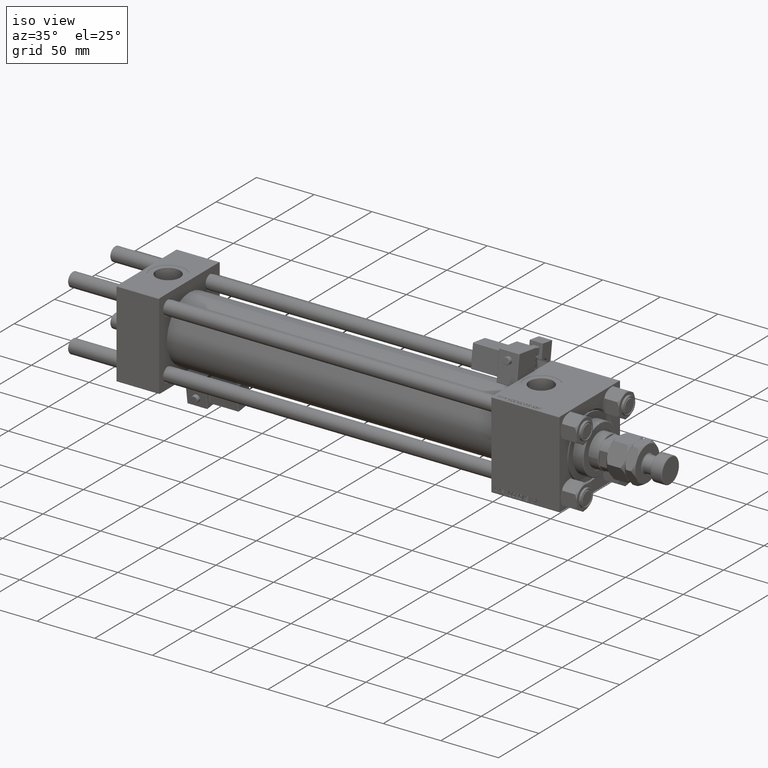
[diagram: clean part render]
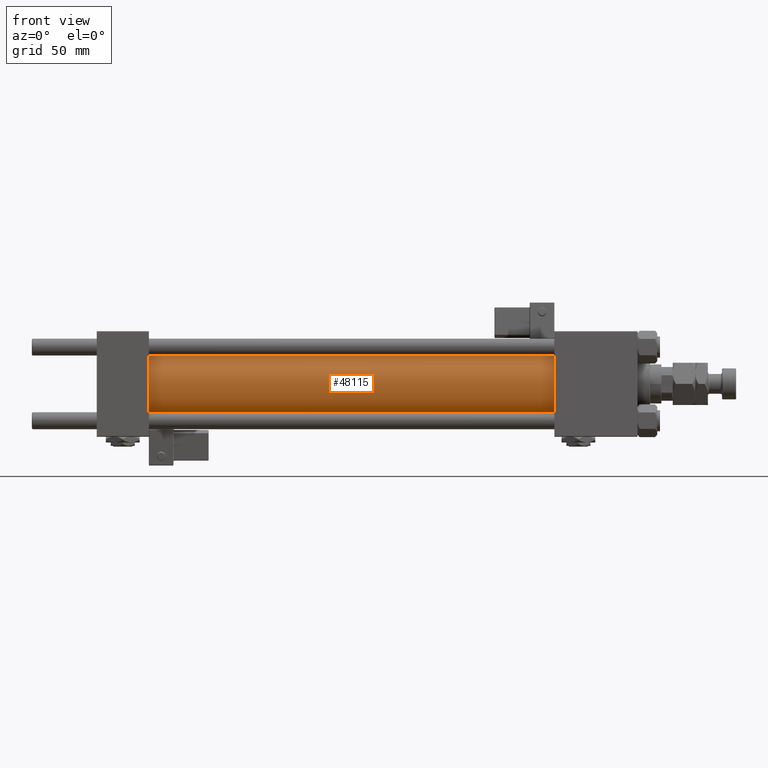
[diagram: tour spotlight — one face highlighted and labeled with its STEP entity id]
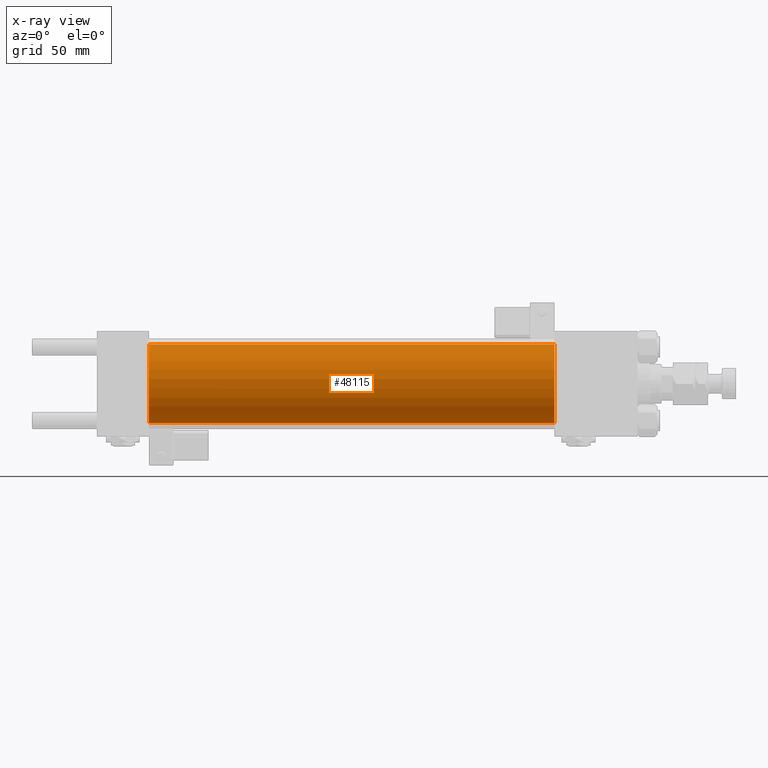
[diagram: x-ray of the same camera — body ghosted, this tour face saturated]
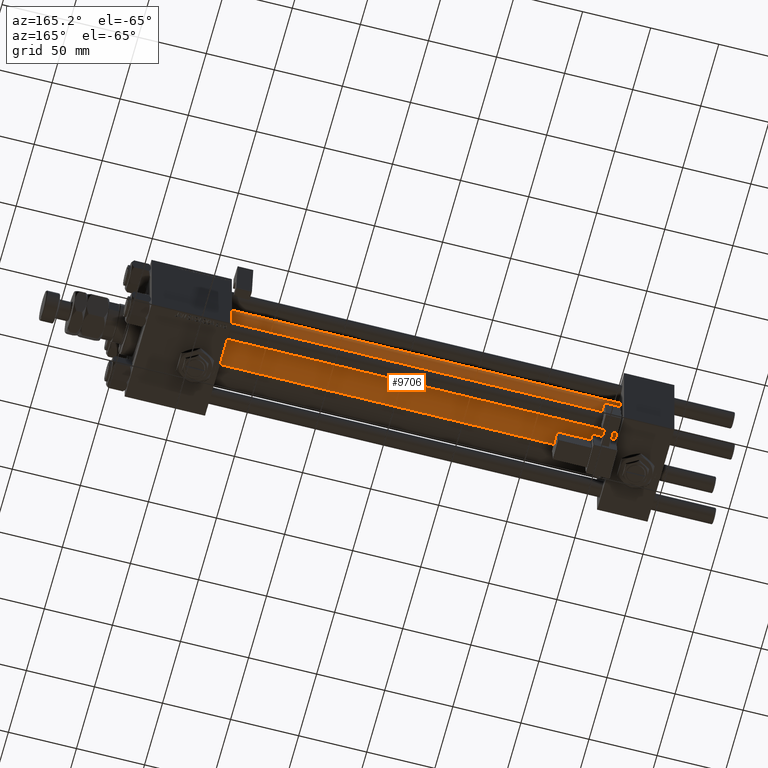
[diagram: tour spotlight — one face highlighted and labeled with its STEP entity id]
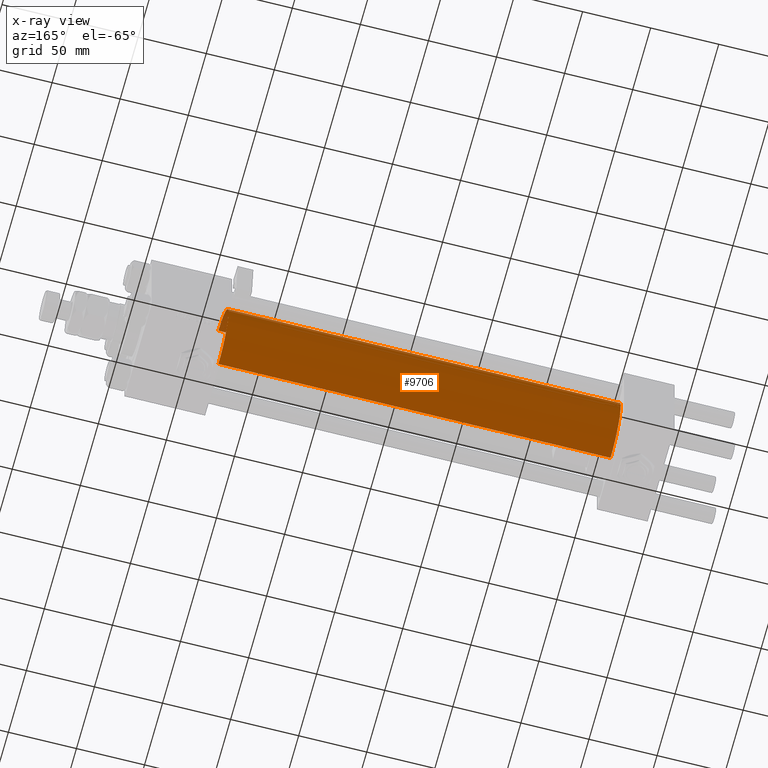
[diagram: x-ray of the same camera — body ghosted, this tour face saturated]
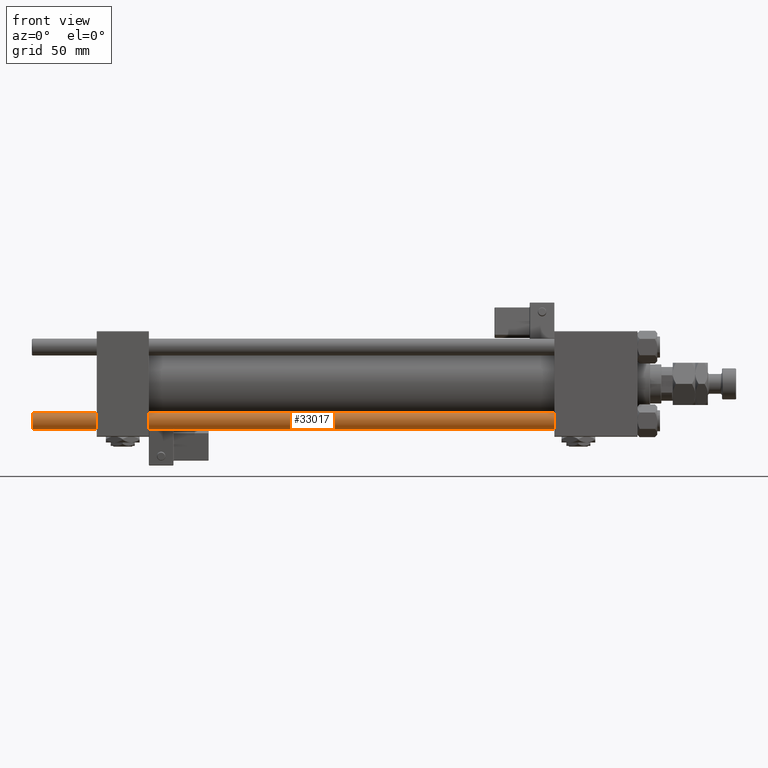
[diagram: tour spotlight — one face highlighted and labeled with its STEP entity id]
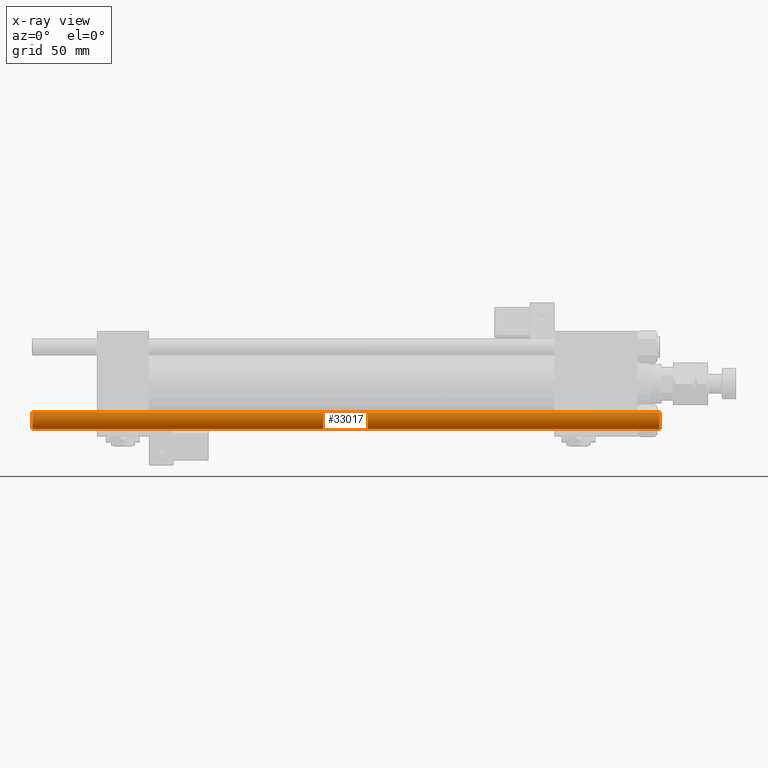
[diagram: x-ray of the same camera — body ghosted, this tour face saturated]
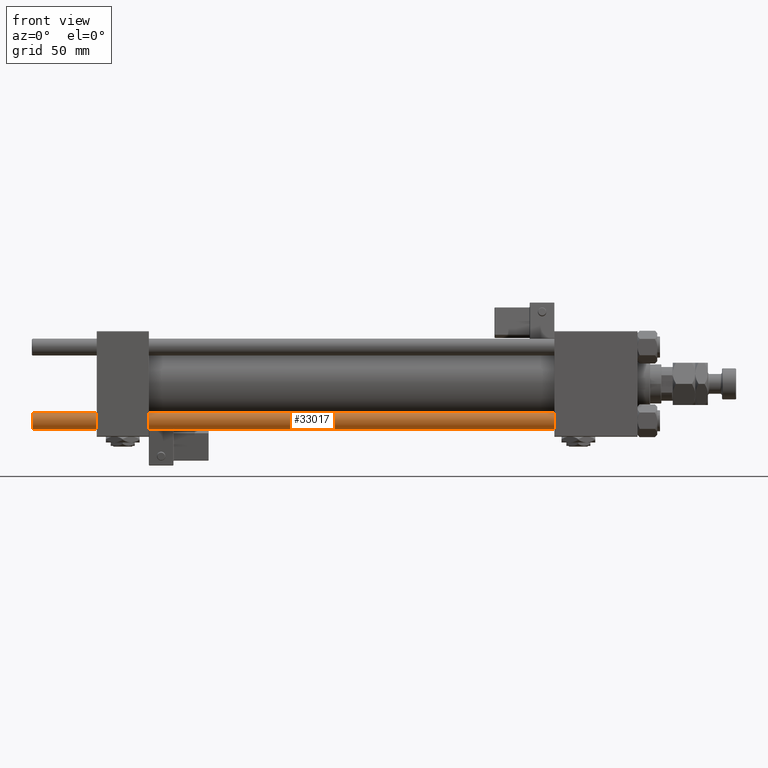
[diagram: tour spotlight — one face highlighted and labeled with its STEP entity id]
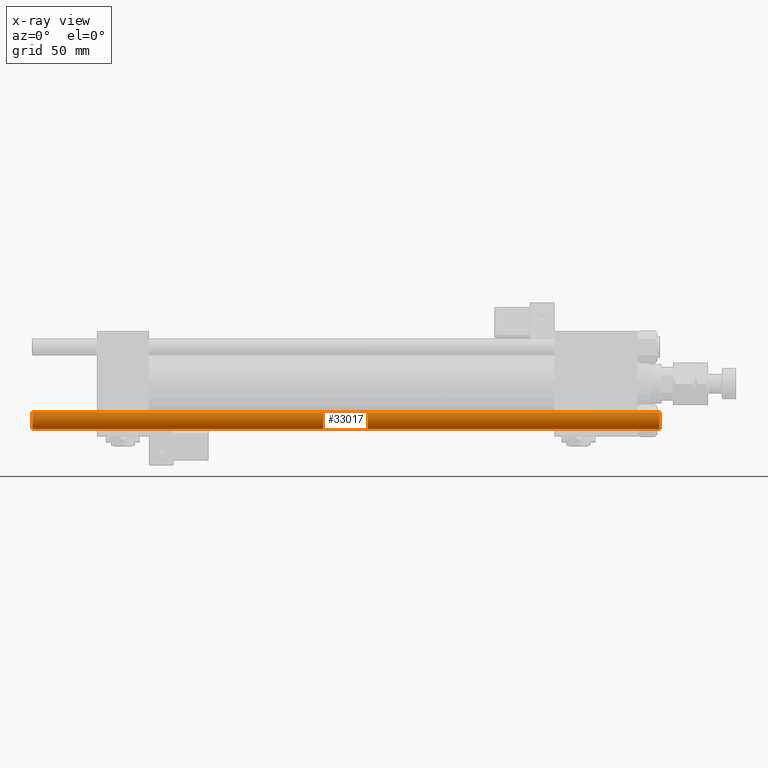
[diagram: x-ray of the same camera — body ghosted, this tour face saturated]
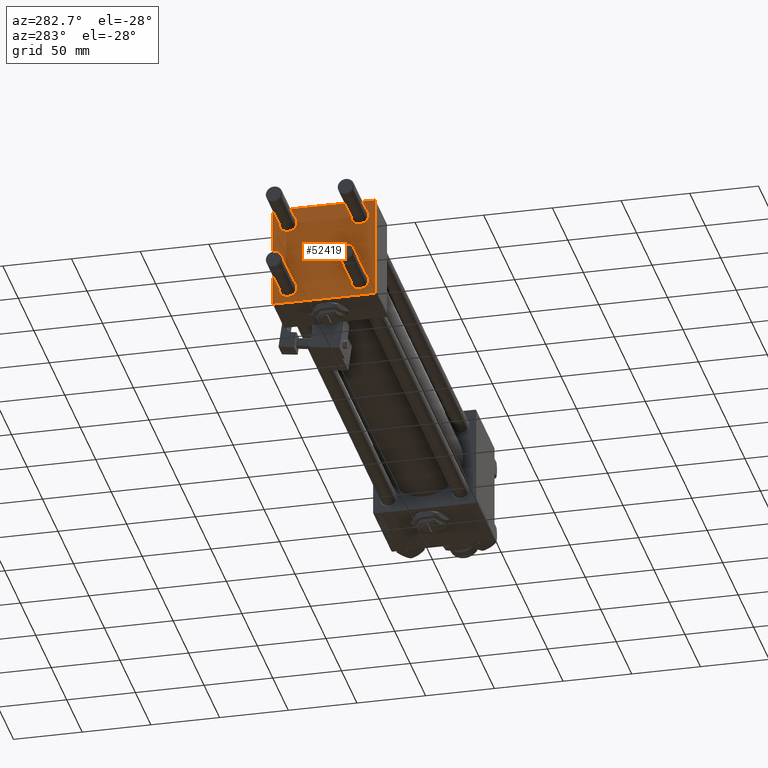
[diagram: tour spotlight — one face highlighted and labeled with its STEP entity id]
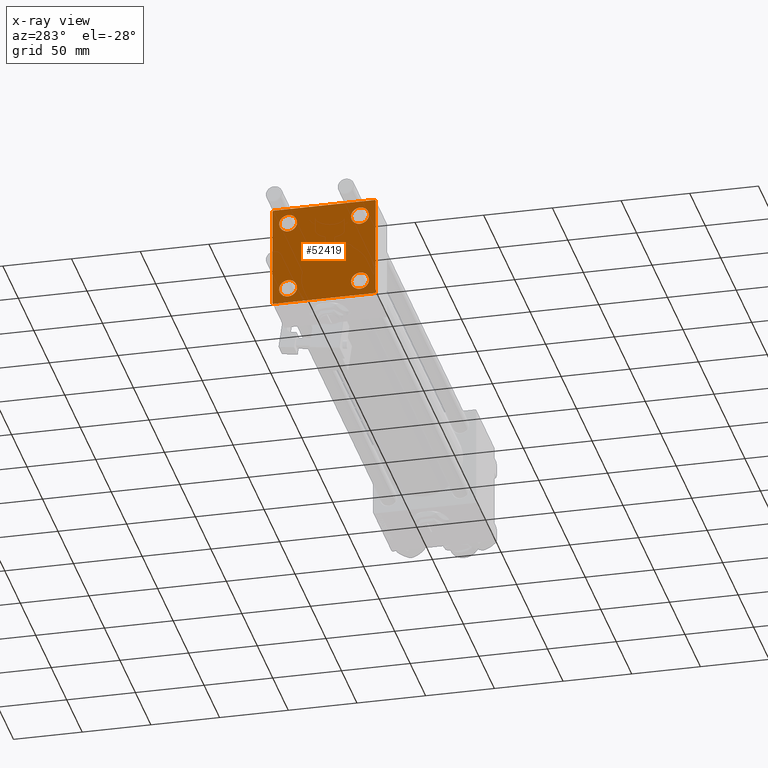
[diagram: x-ray of the same camera — body ghosted, this tour face saturated]
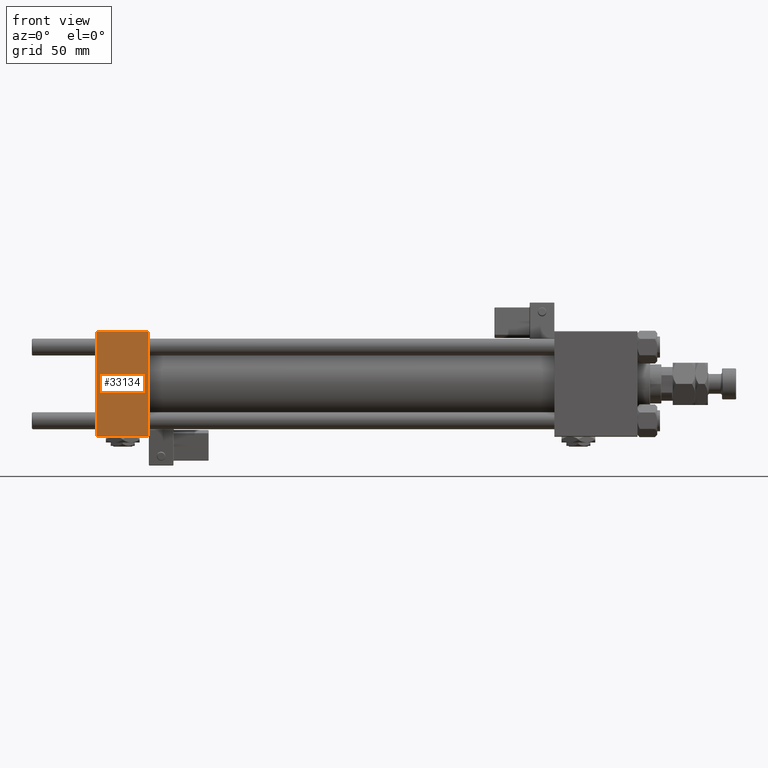
[diagram: tour spotlight — one face highlighted and labeled with its STEP entity id]
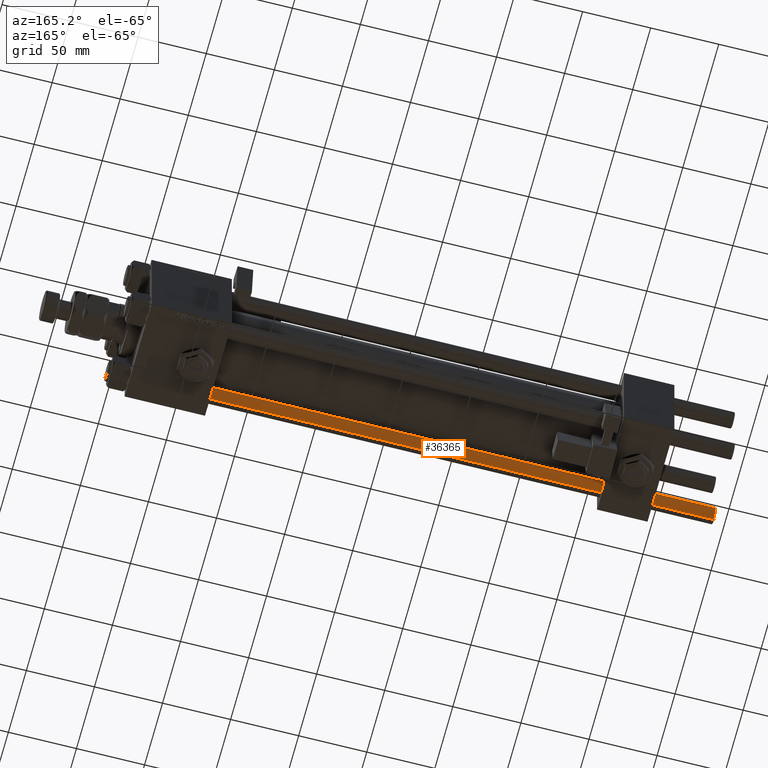
[diagram: tour spotlight — one face highlighted and labeled with its STEP entity id]
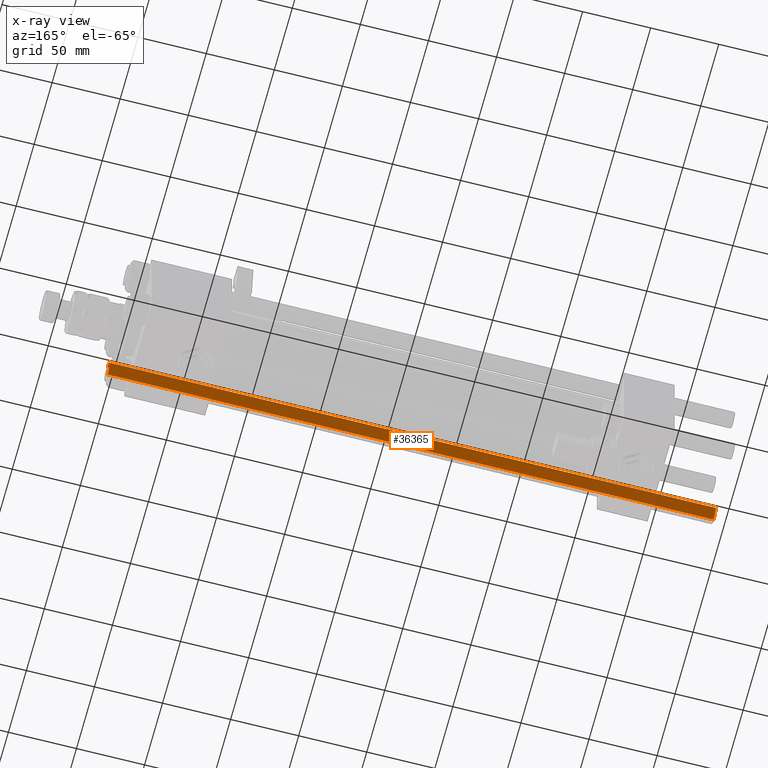
[diagram: x-ray of the same camera — body ghosted, this tour face saturated]
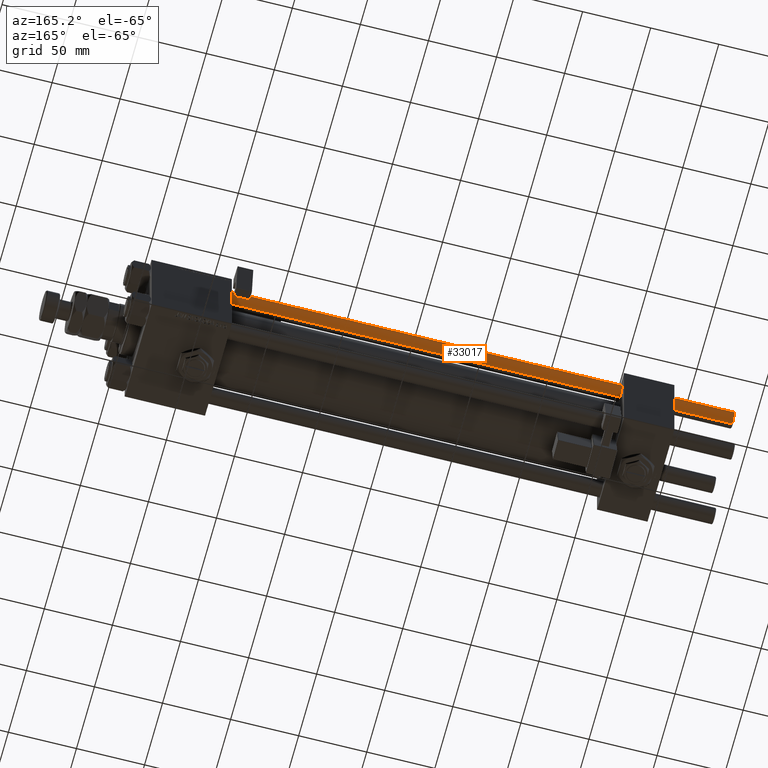
[diagram: tour spotlight — one face highlighted and labeled with its STEP entity id]
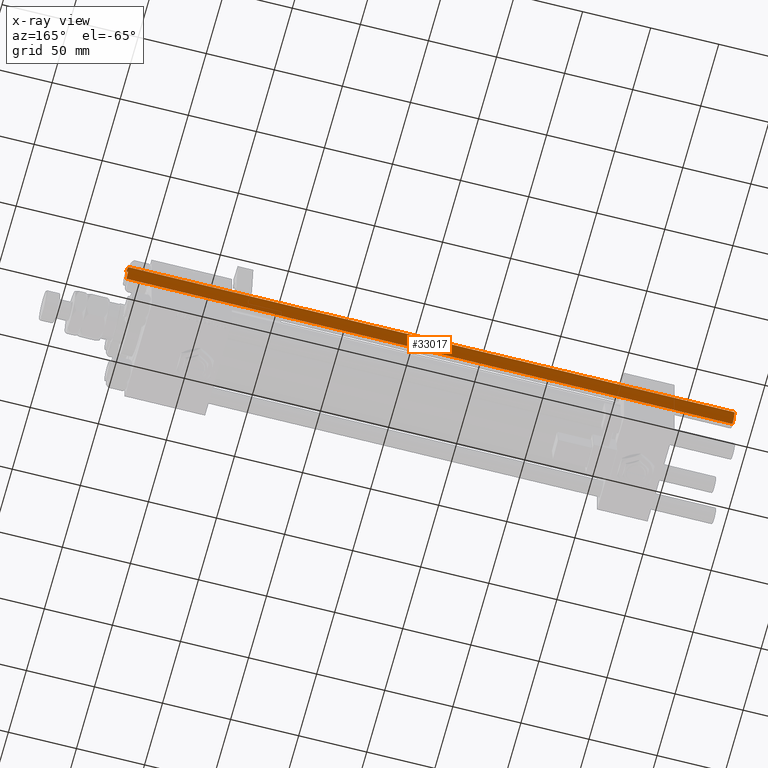
[diagram: x-ray of the same camera — body ghosted, this tour face saturated]
A machine part: a face-by-face anatomy tour. The part has 1439 B-rep faces; the first image is the clean iso view, then the 8 largest visible faces are spotlighted one at a time (largest first), each with its STEP entity span.

Face 1 — front view, entity #48115. An x-ray twin of the same camera follows (body ghosted, this face saturated) — the face is partly hidden behind the body. In plain terms, the highlighted cylindrical surface (partial cylindrical patch) has radius 28 mm, axis along (-1, -0, -0).
Definition (entity closure, byte-faithful):
#454 = EDGE_CURVE ( 'NONE', #48136, #36408, #7080, .T. ) ;
#545 = AXIS2_PLACEMENT_3D ( 'NONE', #39839, #48265, #9749 ) ;
#1561 = ORIENTED_EDGE ( 'NONE', *, *, #39911, .T. ) ;
#1750 = VERTEX_POINT ( 'NONE', #52668 ) ;
#3054 = CARTESIAN_POINT ( 'NONE',  ( 36.99999999999997868, 0.000000000000000000, 0.000000000000000000 ) ) ;
#7080 = LINE ( 'NONE', #41117, #16031 ) ;
#9749 = DIRECTION ( 'NONE',  ( 0.000000000000000000, 0.000000000000000000, -1.000000000000000000 ) ) ;
#11065 = CARTESIAN_POINT ( 'NONE',  ( 324.9999999999999432, 0.000000000000000000, 28.00000000000000000 ) ) ;
#11528 = DIRECTION ( 'NONE',  ( 1.000000000000000000, -0.000000000000000000, 0.000000000000000000 ) ) ;
#13372 = ORIENTED_EDGE ( 'NONE', *, *, #17454, .T. ) ;
#13380 = CARTESIAN_POINT ( 'NONE',  ( 324.9999999999999432, 3.429011037612589276E-15, -28.00000000000000000 ) ) ;
#13888 = CARTESIAN_POINT ( 'NONE',  ( 36.99999999999997868, 3.429011037612589276E-15, -28.00000000000000000 ) ) ;
#15380 = CYLINDRICAL_SURFACE ( 'NONE', #33687, 28.00000000000000000 ) ;
#15854 = LINE ( 'NONE', #11065, #54835 ) ;
#16031 = VECTOR ( 'NONE', #20311, 1000.000000000000000 ) ;
#16710 = CIRCLE ( 'NONE', #545, 28.00000000000000000 ) ;
#17454 = EDGE_CURVE ( 'NONE', #29635, #1750, #15854, .T. ) ;
#18711 = AXIS2_PLACEMENT_3D ( 'NONE', #3054, #11528, #19964 ) ;
#19620 = CIRCLE ( 'NONE', #18711, 28.00000000000000000 ) ;
#19964 = DIRECTION ( 'NONE',  ( 0.000000000000000000, 0.000000000000000000, 1.000000000000000000 ) ) ;
#20311 = DIRECTION ( 'NONE',  ( -1.000000000000000000, -0.000000000000000000, -0.000000000000000000 ) ) ;
#23696 = ORIENTED_EDGE ( 'NONE', *, *, #454, .F. ) ;
#28222 = DIRECTION ( 'NONE',  ( -1.000000000000000000, -0.000000000000000000, -0.000000000000000000 ) ) ;
#28298 = CARTESIAN_POINT ( 'NONE',  ( 324.9999999999999432, 0.000000000000000000, 0.000000000000000000 ) ) ;
#29635 = VERTEX_POINT ( 'NONE', #36951 ) ;
#33345 = DIRECTION ( 'NONE',  ( 0.000000000000000000, 0.000000000000000000, 1.000000000000000000 ) ) ;
#33687 = AXIS2_PLACEMENT_3D ( 'NONE', #28298, #46267, #33345 ) ;
#36408 = VERTEX_POINT ( 'NONE', #13888 ) ;
#36951 = CARTESIAN_POINT ( 'NONE',  ( 324.9999999999999432, 0.000000000000000000, 28.00000000000000000 ) ) ;
#39839 = CARTESIAN_POINT ( 'NONE',  ( 324.9999999999999432, 0.000000000000000000, 0.000000000000000000 ) ) ;
#39911 = EDGE_CURVE ( 'NONE', #1750, #36408, #19620, .T. ) ;
#40109 = EDGE_LOOP ( 'NONE', ( #23696, #52790, #13372, #1561 ) ) ;
#41117 = CARTESIAN_POINT ( 'NONE',  ( 324.9999999999999432, 3.429011037612589276E-15, -28.00000000000000000 ) ) ;
#46267 = DIRECTION ( 'NONE',  ( -1.000000000000000000, -0.000000000000000000, -0.000000000000000000 ) ) ;
#48115 = ADVANCED_FACE ( 'NONE', ( #53891 ), #15380, .T. ) ;
#48136 = VERTEX_POINT ( 'NONE', #13380 ) ;
#48265 = DIRECTION ( 'NONE',  ( 1.000000000000000000, 0.000000000000000000, 0.000000000000000000 ) ) ;
#50451 = EDGE_CURVE ( 'NONE', #29635, #48136, #16710, .T. ) ;
#52668 = CARTESIAN_POINT ( 'NONE',  ( 36.99999999999997868, 0.000000000000000000, 28.00000000000000000 ) ) ;
#52790 = ORIENTED_EDGE ( 'NONE', *, *, #50451, .F. ) ;
#53891 = FACE_OUTER_BOUND ( 'NONE', #40109, .T. ) ;
#54835 = VECTOR ( 'NONE', #28222, 1000.000000000000000 ) ;

Face 2 — auxiliary view, entity #9706. An x-ray twin of the same camera follows (body ghosted, this face saturated) — the face is partly hidden behind the body. In plain terms, the highlighted cylindrical surface (partial cylindrical patch) has radius 28 mm, axis along (-1, -0, -0).
Definition (entity closure, byte-faithful):
#289 = AXIS2_PLACEMENT_3D ( 'NONE', #33502, #25340, #3944 ) ;
#435 = FACE_OUTER_BOUND ( 'NONE', #25379, .T. ) ;
#454 = EDGE_CURVE ( 'NONE', #48136, #36408, #7080, .T. ) ;
#1750 = VERTEX_POINT ( 'NONE', #52668 ) ;
#3944 = DIRECTION ( 'NONE',  ( 0.000000000000000000, 0.000000000000000000, 1.000000000000000000 ) ) ;
#7080 = LINE ( 'NONE', #41117, #16031 ) ;
#8049 = CARTESIAN_POINT ( 'NONE',  ( 324.9999999999999432, 0.000000000000000000, 0.000000000000000000 ) ) ;
#9706 = ADVANCED_FACE ( 'NONE', ( #435 ), #46851, .T. ) ;
#11065 = CARTESIAN_POINT ( 'NONE',  ( 324.9999999999999432, 0.000000000000000000, 28.00000000000000000 ) ) ;
#12533 = CARTESIAN_POINT ( 'NONE',  ( 324.9999999999999432, 0.000000000000000000, 0.000000000000000000 ) ) ;
#13380 = CARTESIAN_POINT ( 'NONE',  ( 324.9999999999999432, 3.429011037612589276E-15, -28.00000000000000000 ) ) ;
#13888 = CARTESIAN_POINT ( 'NONE',  ( 36.99999999999997868, 3.429011037612589276E-15, -28.00000000000000000 ) ) ;
#13961 = ORIENTED_EDGE ( 'NONE', *, *, #454, .T. ) ;
#15284 = ORIENTED_EDGE ( 'NONE', *, *, #17454, .F. ) ;
#15854 = LINE ( 'NONE', #11065, #54835 ) ;
#16031 = VECTOR ( 'NONE', #20311, 1000.000000000000000 ) ;
#17454 = EDGE_CURVE ( 'NONE', #29635, #1750, #15854, .T. ) ;
#18591 = CIRCLE ( 'NONE', #32895, 28.00000000000000000 ) ;
#19073 = CIRCLE ( 'NONE', #289, 28.00000000000000000 ) ;
#20311 = DIRECTION ( 'NONE',  ( -1.000000000000000000, -0.000000000000000000, -0.000000000000000000 ) ) ;
#23885 = EDGE_CURVE ( 'NONE', #36408, #1750, #19073, .T. ) ;
#25340 = DIRECTION ( 'NONE',  ( 1.000000000000000000, -0.000000000000000000, 0.000000000000000000 ) ) ;
#25379 = EDGE_LOOP ( 'NONE', ( #43366, #13961, #41603, #15284 ) ) ;
#28222 = DIRECTION ( 'NONE',  ( -1.000000000000000000, -0.000000000000000000, -0.000000000000000000 ) ) ;
#29403 = DIRECTION ( 'NONE',  ( 1.000000000000000000, 0.000000000000000000, 0.000000000000000000 ) ) ;
#29635 = VERTEX_POINT ( 'NONE', #36951 ) ;
#30546 = DIRECTION ( 'NONE',  ( 0.000000000000000000, 0.000000000000000000, 1.000000000000000000 ) ) ;
#32895 = AXIS2_PLACEMENT_3D ( 'NONE', #12533, #29403, #35491 ) ;
#33419 = EDGE_CURVE ( 'NONE', #48136, #29635, #18591, .T. ) ;
#33502 = CARTESIAN_POINT ( 'NONE',  ( 36.99999999999997868, 0.000000000000000000, 0.000000000000000000 ) ) ;
#35491 = DIRECTION ( 'NONE',  ( 0.000000000000000000, 0.000000000000000000, -1.000000000000000000 ) ) ;
#36408 = VERTEX_POINT ( 'NONE', #13888 ) ;
#36951 = CARTESIAN_POINT ( 'NONE',  ( 324.9999999999999432, 0.000000000000000000, 28.00000000000000000 ) ) ;
#41117 = CARTESIAN_POINT ( 'NONE',  ( 324.9999999999999432, 3.429011037612589276E-15, -28.00000000000000000 ) ) ;
#41575 = AXIS2_PLACEMENT_3D ( 'NONE', #8049, #42355, #30546 ) ;
#41603 = ORIENTED_EDGE ( 'NONE', *, *, #23885, .T. ) ;
#42355 = DIRECTION ( 'NONE',  ( -1.000000000000000000, -0.000000000000000000, -0.000000000000000000 ) ) ;
#43366 = ORIENTED_EDGE ( 'NONE', *, *, #33419, .F. ) ;
#46851 = CYLINDRICAL_SURFACE ( 'NONE', #41575, 28.00000000000000000 ) ;
#48136 = VERTEX_POINT ( 'NONE', #13380 ) ;
#52668 = CARTESIAN_POINT ( 'NONE',  ( 36.99999999999997868, 0.000000000000000000, 28.00000000000000000 ) ) ;
#54835 = VECTOR ( 'NONE', #28222, 1000.000000000000000 ) ;

Face 3 — front view, entity #33017. An x-ray twin of the same camera follows (body ghosted, this face saturated) — the face is partly hidden behind the body. In plain terms, the highlighted cylindrical surface (edge-blend (fillet) strip) has radius 6 mm, axis along (1, -0, 0).
Definition (entity closure, byte-faithful):
#24 = DIRECTION ( 'NONE',  ( -0.000000000000000000, -0.000000000000000000, -1.000000000000000000 ) ) ;
#499 = EDGE_CURVE ( 'NONE', #27468, #15181, #42069, .T. ) ;
#1936 = CARTESIAN_POINT ( 'NONE',  ( 0.000000000000000000, 0.000000000000000000, 445.5000000000003411 ) ) ;
#2968 = VERTEX_POINT ( 'NONE', #33578 ) ;
#3120 = DIRECTION ( 'NONE',  ( -0.000000000000000000, -0.000000000000000000, 1.000000000000000000 ) ) ;
#6805 = CARTESIAN_POINT ( 'NONE',  ( -6.000000000000000888, 0.000000000000000000, 0.5000000000003890221 ) ) ;
#7324 = VECTOR ( 'NONE', #24, 1000.000000000000000 ) ;
#7946 = AXIS2_PLACEMENT_3D ( 'NONE', #24249, #3120, #37447 ) ;
#8438 = ORIENTED_EDGE ( 'NONE', *, *, #499, .T. ) ;
#8763 = CIRCLE ( 'NONE', #29446, 6.000000000000000888 ) ;
#11006 = EDGE_CURVE ( 'NONE', #45757, #15181, #54068, .T. ) ;
#11086 = VECTOR ( 'NONE', #35186, 1000.000000000000000 ) ;
#13783 = CARTESIAN_POINT ( 'NONE',  ( 0.000000000000000000, 0.000000000000000000, 446.0000000000000000 ) ) ;
#14099 = DIRECTION ( 'NONE',  ( 1.000000000000000000, 0.000000000000000000, 0.000000000000000000 ) ) ;
#15181 = VERTEX_POINT ( 'NONE', #6805 ) ;
#16612 = CARTESIAN_POINT ( 'NONE',  ( -6.000000000000000888, 0.000000000000000000, 445.5000000000003411 ) ) ;
#18280 = DIRECTION ( 'NONE',  ( -1.000000000000000000, 0.000000000000000000, 0.000000000000000000 ) ) ;
#19104 = DIRECTION ( 'NONE',  ( -0.000000000000000000, -0.000000000000000000, -1.000000000000000000 ) ) ;
#24249 = CARTESIAN_POINT ( 'NONE',  ( 0.000000000000000000, 0.000000000000000000, 0.5000000000003890221 ) ) ;
#26467 = LINE ( 'NONE', #43904, #11086 ) ;
#27468 = VERTEX_POINT ( 'NONE', #36148 ) ;
#28555 = EDGE_LOOP ( 'NONE', ( #54322, #44174, #8438, #45528 ) ) ;
#29446 = AXIS2_PLACEMENT_3D ( 'NONE', #1936, #35451, #14099 ) ;
#33017 = ADVANCED_FACE ( 'NONE', ( #48608 ), #40186, .T. ) ;
#33578 = CARTESIAN_POINT ( 'NONE',  ( 6.000000000000000888, 7.347880794884119736E-16, 445.5000000000003411 ) ) ;
#34360 = CARTESIAN_POINT ( 'NONE',  ( -6.000000000000000888, 0.000000000000000000, 446.0000000000000000 ) ) ;
#35186 = DIRECTION ( 'NONE',  ( -0.000000000000000000, -0.000000000000000000, -1.000000000000000000 ) ) ;
#35451 = DIRECTION ( 'NONE',  ( 0.000000000000000000, 0.000000000000000000, -1.000000000000000000 ) ) ;
#36148 = CARTESIAN_POINT ( 'NONE',  ( 6.000000000000000888, 7.347880794884119736E-16, 0.5000000000003890221 ) ) ;
#37447 = DIRECTION ( 'NONE',  ( 1.000000000000000000, 0.000000000000000000, 0.000000000000000000 ) ) ;
#39102 = EDGE_CURVE ( 'NONE', #45757, #2968, #8763, .T. ) ;
#40186 = CYLINDRICAL_SURFACE ( 'NONE', #45460, 6.000000000000000888 ) ;
#42069 = CIRCLE ( 'NONE', #7946, 6.000000000000000888 ) ;
#43904 = CARTESIAN_POINT ( 'NONE',  ( 6.000000000000000888, 7.347880794884119736E-16, 446.0000000000000000 ) ) ;
#44174 = ORIENTED_EDGE ( 'NONE', *, *, #44630, .T. ) ;
#44630 = EDGE_CURVE ( 'NONE', #2968, #27468, #26467, .T. ) ;
#45460 = AXIS2_PLACEMENT_3D ( 'NONE', #13783, #19104, #18280 ) ;
#45528 = ORIENTED_EDGE ( 'NONE', *, *, #11006, .F. ) ;
#45757 = VERTEX_POINT ( 'NONE', #16612 ) ;
#48608 = FACE_OUTER_BOUND ( 'NONE', #28555, .T. ) ;
#54068 = LINE ( 'NONE', #34360, #7324 ) ;
#54322 = ORIENTED_EDGE ( 'NONE', *, *, #39102, .T. ) ;

Face 4 — front view, entity #33017. An x-ray twin of the same camera follows (body ghosted, this face saturated) — the face is partly hidden behind the body. In plain terms, the highlighted cylindrical surface (edge-blend (fillet) strip) has radius 6 mm, axis along (-1, 0, 0).
Definition (entity closure, byte-faithful):
#24 = DIRECTION ( 'NONE',  ( -0.000000000000000000, -0.000000000000000000, -1.000000000000000000 ) ) ;
#499 = EDGE_CURVE ( 'NONE', #27468, #15181, #42069, .T. ) ;
#1936 = CARTESIAN_POINT ( 'NONE',  ( 0.000000000000000000, 0.000000000000000000, 445.5000000000003411 ) ) ;
#2968 = VERTEX_POINT ( 'NONE', #33578 ) ;
#3120 = DIRECTION ( 'NONE',  ( -0.000000000000000000, -0.000000000000000000, 1.000000000000000000 ) ) ;
#6805 = CARTESIAN_POINT ( 'NONE',  ( -6.000000000000000888, 0.000000000000000000, 0.5000000000003890221 ) ) ;
#7324 = VECTOR ( 'NONE', #24, 1000.000000000000000 ) ;
#7946 = AXIS2_PLACEMENT_3D ( 'NONE', #24249, #3120, #37447 ) ;
#8438 = ORIENTED_EDGE ( 'NONE', *, *, #499, .T. ) ;
#8763 = CIRCLE ( 'NONE', #29446, 6.000000000000000888 ) ;
#11006 = EDGE_CURVE ( 'NONE', #45757, #15181, #54068, .T. ) ;
#11086 = VECTOR ( 'NONE', #35186, 1000.000000000000000 ) ;
#13783 = CARTESIAN_POINT ( 'NONE',  ( 0.000000000000000000, 0.000000000000000000, 446.0000000000000000 ) ) ;
#14099 = DIRECTION ( 'NONE',  ( 1.000000000000000000, 0.000000000000000000, 0.000000000000000000 ) ) ;
#15181 = VERTEX_POINT ( 'NONE', #6805 ) ;
#16612 = CARTESIAN_POINT ( 'NONE',  ( -6.000000000000000888, 0.000000000000000000, 445.5000000000003411 ) ) ;
#18280 = DIRECTION ( 'NONE',  ( -1.000000000000000000, 0.000000000000000000, 0.000000000000000000 ) ) ;
#19104 = DIRECTION ( 'NONE',  ( -0.000000000000000000, -0.000000000000000000, -1.000000000000000000 ) ) ;
#24249 = CARTESIAN_POINT ( 'NONE',  ( 0.000000000000000000, 0.000000000000000000, 0.5000000000003890221 ) ) ;
#26467 = LINE ( 'NONE', #43904, #11086 ) ;
#27468 = VERTEX_POINT ( 'NONE', #36148 ) ;
#28555 = EDGE_LOOP ( 'NONE', ( #54322, #44174, #8438, #45528 ) ) ;
#29446 = AXIS2_PLACEMENT_3D ( 'NONE', #1936, #35451, #14099 ) ;
#33017 = ADVANCED_FACE ( 'NONE', ( #48608 ), #40186, .T. ) ;
#33578 = CARTESIAN_POINT ( 'NONE',  ( 6.000000000000000888, 7.347880794884119736E-16, 445.5000000000003411 ) ) ;
#34360 = CARTESIAN_POINT ( 'NONE',  ( -6.000000000000000888, 0.000000000000000000, 446.0000000000000000 ) ) ;
#35186 = DIRECTION ( 'NONE',  ( -0.000000000000000000, -0.000000000000000000, -1.000000000000000000 ) ) ;
#35451 = DIRECTION ( 'NONE',  ( 0.000000000000000000, 0.000000000000000000, -1.000000000000000000 ) ) ;
#36148 = CARTESIAN_POINT ( 'NONE',  ( 6.000000000000000888, 7.347880794884119736E-16, 0.5000000000003890221 ) ) ;
#37447 = DIRECTION ( 'NONE',  ( 1.000000000000000000, 0.000000000000000000, 0.000000000000000000 ) ) ;
#39102 = EDGE_CURVE ( 'NONE', #45757, #2968, #8763, .T. ) ;
#40186 = CYLINDRICAL_SURFACE ( 'NONE', #45460, 6.000000000000000888 ) ;
#42069 = CIRCLE ( 'NONE', #7946, 6.000000000000000888 ) ;
#43904 = CARTESIAN_POINT ( 'NONE',  ( 6.000000000000000888, 7.347880794884119736E-16, 446.0000000000000000 ) ) ;
#44174 = ORIENTED_EDGE ( 'NONE', *, *, #44630, .T. ) ;
#44630 = EDGE_CURVE ( 'NONE', #2968, #27468, #26467, .T. ) ;
#45460 = AXIS2_PLACEMENT_3D ( 'NONE', #13783, #19104, #18280 ) ;
#45528 = ORIENTED_EDGE ( 'NONE', *, *, #11006, .F. ) ;
#45757 = VERTEX_POINT ( 'NONE', #16612 ) ;
#48608 = FACE_OUTER_BOUND ( 'NONE', #28555, .T. ) ;
#54068 = LINE ( 'NONE', #34360, #7324 ) ;
#54322 = ORIENTED_EDGE ( 'NONE', *, *, #39102, .T. ) ;

Face 5 — auxiliary view, entity #52419. An x-ray twin of the same camera follows (body ghosted, this face saturated) — the face is partly hidden behind the body. In plain terms, the highlighted planar face has unit normal (-1, 0, 0).
Definition (entity closure, byte-faithful):
#732 = CARTESIAN_POINT ( 'NONE',  ( 0.000000000000000000, -37.00000000000002132, -37.50000000000000711 ) ) ;
#1089 = ORIENTED_EDGE ( 'NONE', *, *, #30092, .F. ) ;
#2104 = VERTEX_POINT ( 'NONE', #12552 ) ;
#2267 = VERTEX_POINT ( 'NONE', #7691 ) ;
#2523 = CARTESIAN_POINT ( 'NONE',  ( 0.000000000000000000, -26.14999999999999147, 26.15000000000000924 ) ) ;
#2627 = EDGE_LOOP ( 'NONE', ( #39359, #54147 ) ) ;
#2699 = LINE ( 'NONE', #2983, #54302 ) ;
#2897 = FACE_BOUND ( 'NONE', #34638, .T. ) ;
#2983 = CARTESIAN_POINT ( 'NONE',  ( 0.000000000000000000, 37.49999999999999289, 37.50000000000000000 ) ) ;
#2998 = VERTEX_POINT ( 'NONE', #6113 ) ;
#3616 = VERTEX_POINT ( 'NONE', #52660 ) ;
#3840 = CARTESIAN_POINT ( 'NONE',  ( 0.000000000000000000, 37.49999999999999289, 37.50000000000000000 ) ) ;
#3977 = CARTESIAN_POINT ( 'NONE',  ( 0.000000000000000000, 26.14999999999999858, 26.15000000000000213 ) ) ;
#4119 = ORIENTED_EDGE ( 'NONE', *, *, #45247, .T. ) ;
#4152 = EDGE_CURVE ( 'NONE', #45296, #51666, #52250, .T. ) ;
#4402 = LINE ( 'NONE', #3840, #35377 ) ;
#4718 = VERTEX_POINT ( 'NONE', #49262 ) ;
#6113 = CARTESIAN_POINT ( 'NONE',  ( 0.000000000000000000, 37.49999999999999289, -36.99999999999998579 ) ) ;
#6569 = CIRCLE ( 'NONE', #46956, 6.500000000000015987 ) ;
#6571 = VECTOR ( 'NONE', #48686, 1000.000000000000114 ) ;
#7332 = EDGE_CURVE ( 'NONE', #7493, #51666, #22712, .T. ) ;
#7493 = VERTEX_POINT ( 'NONE', #44202 ) ;
#7691 = CARTESIAN_POINT ( 'NONE',  ( 0.000000000000000000, 26.14999999999999858, 32.65000000000002700 ) ) ;
#8015 = LINE ( 'NONE', #54999, #21251 ) ;
#8105 = EDGE_CURVE ( 'NONE', #50673, #51937, #17274, .T. ) ;
#8243 = FACE_OUTER_BOUND ( 'NONE', #46361, .T. ) ;
#8490 = DIRECTION ( 'NONE',  ( 1.000000000000000000, -0.000000000000000000, 0.000000000000000000 ) ) ;
#8538 = AXIS2_PLACEMENT_3D ( 'NONE', #35223, #9903, #35776 ) ;
#9050 = ORIENTED_EDGE ( 'NONE', *, *, #23145, .T. ) ;
#9903 = DIRECTION ( 'NONE',  ( 1.000000000000000000, -0.000000000000000000, 0.000000000000000000 ) ) ;
#10971 = EDGE_CURVE ( 'NONE', #4718, #42087, #41440, .T. ) ;
#11878 = ORIENTED_EDGE ( 'NONE', *, *, #14109, .T. ) ;
#12222 = ORIENTED_EDGE ( 'NONE', *, *, #16459, .T. ) ;
#12552 = CARTESIAN_POINT ( 'NONE',  ( 0.000000000000000000, -26.14999999999999147, -19.64999999999999503 ) ) ;
#13435 = DIRECTION ( 'NONE',  ( 0.000000000000000000, 0.000000000000000000, -1.000000000000000000 ) ) ;
#14081 = EDGE_CURVE ( 'NONE', #16687, #3616, #14967, .T. ) ;
#14109 = EDGE_CURVE ( 'NONE', #51937, #50673, #29013, .T. ) ;
#14640 = CIRCLE ( 'NONE', #46028, 6.500000000000023093 ) ;
#14967 = LINE ( 'NONE', #32109, #6571 ) ;
#15381 = CARTESIAN_POINT ( 'NONE',  ( 0.000000000000000000, -37.50000000000000711, 37.49999999999999289 ) ) ;
#16045 = LINE ( 'NONE', #46386, #43999 ) ;
#16276 = DIRECTION ( 'NONE',  ( 1.000000000000000000, -0.000000000000000000, 0.000000000000000000 ) ) ;
#16459 = EDGE_CURVE ( 'NONE', #7493, #32814, #16045, .T. ) ;
#16520 = DIRECTION ( 'NONE',  ( 0.000000000000000000, -1.000000000000000000, -9.251858538542971581E-17 ) ) ;
#16687 = VERTEX_POINT ( 'NONE', #44397 ) ;
#16704 = CARTESIAN_POINT ( 'NONE',  ( 0.000000000000000000, -26.14999999999999147, -32.65000000000002700 ) ) ;
#17195 = VECTOR ( 'NONE', #48558, 1000.000000000000000 ) ;
#17274 = CIRCLE ( 'NONE', #41446, 6.500000000000023093 ) ;
#20090 = FACE_BOUND ( 'NONE', #45609, .T. ) ;
#20852 = DIRECTION ( 'NONE',  ( -0.000000000000000000, -0.7071067811865474617, -0.7071067811865474617 ) ) ;
#20884 = DIRECTION ( 'NONE',  ( 0.000000000000000000, 0.000000000000000000, 1.000000000000000000 ) ) ;
#20925 = PLANE ( 'NONE',  #31921 ) ;
#20974 = DIRECTION ( 'NONE',  ( 0.000000000000000000, -1.000000000000000000, -9.251858538542972814E-17 ) ) ;
#21251 = VECTOR ( 'NONE', #20974, 1000.000000000000000 ) ;
#22712 = LINE ( 'NONE', #15381, #17195 ) ;
#23145 = EDGE_CURVE ( 'NONE', #35391, #2104, #6569, .T. ) ;
#24377 = EDGE_CURVE ( 'NONE', #42087, #4718, #31671, .T. ) ;
#25017 = DIRECTION ( 'NONE',  ( 1.000000000000000000, -0.000000000000000000, 0.000000000000000000 ) ) ;
#25423 = ORIENTED_EDGE ( 'NONE', *, *, #14081, .T. ) ;
#26400 = ORIENTED_EDGE ( 'NONE', *, *, #7332, .F. ) ;
#27031 = DIRECTION ( 'NONE',  ( 0.000000000000000000, 0.000000000000000000, 1.000000000000000000 ) ) ;
#27334 = DIRECTION ( 'NONE',  ( 0.000000000000000000, 0.000000000000000000, 1.000000000000000000 ) ) ;
#27860 = DIRECTION ( 'NONE',  ( 1.000000000000000000, -0.000000000000000000, 0.000000000000000000 ) ) ;
#28342 = EDGE_LOOP ( 'NONE', ( #40309, #35187 ) ) ;
#28792 = CARTESIAN_POINT ( 'NONE',  ( 0.000000000000000000, 0.000000000000000000, 0.000000000000000000 ) ) ;
#29013 = CIRCLE ( 'NONE', #31724, 6.500000000000023093 ) ;
#29321 = ORIENTED_EDGE ( 'NONE', *, *, #38883, .T. ) ;
#29404 = CARTESIAN_POINT ( 'NONE',  ( 0.000000000000000000, -37.50000000000000000, -37.00000000000003553 ) ) ;
#29923 = ORIENTED_EDGE ( 'NONE', *, *, #51677, .T. ) ;
#30092 = EDGE_CURVE ( 'NONE', #16687, #32814, #2699, .T. ) ;
#30154 = CARTESIAN_POINT ( 'NONE',  ( 0.000000000000000000, -26.14999999999999147, 32.65000000000003411 ) ) ;
#31671 = CIRCLE ( 'NONE', #47794, 6.500000000000015987 ) ;
#31724 = AXIS2_PLACEMENT_3D ( 'NONE', #2523, #44750, #27334 ) ;
#31921 = AXIS2_PLACEMENT_3D ( 'NONE', #28792, #45662, #33293 ) ;
#32109 = CARTESIAN_POINT ( 'NONE',  ( 0.000000000000000000, 37.24999999999999289, 37.24999999999999289 ) ) ;
#32694 = DIRECTION ( 'NONE',  ( 1.000000000000000000, -0.000000000000000000, 0.000000000000000000 ) ) ;
#32814 = VERTEX_POINT ( 'NONE', #50622 ) ;
#33293 = DIRECTION ( 'NONE',  ( -0.000000000000000000, 0.000000000000000000, 1.000000000000000000 ) ) ;
#33503 = ORIENTED_EDGE ( 'NONE', *, *, #4152, .T. ) ;
#33701 = DIRECTION ( 'NONE',  ( 0.000000000000000000, 0.000000000000000000, 1.000000000000000000 ) ) ;
#34638 = EDGE_LOOP ( 'NONE', ( #48874, #9050 ) ) ;
#35187 = ORIENTED_EDGE ( 'NONE', *, *, #43872, .T. ) ;
#35223 = CARTESIAN_POINT ( 'NONE',  ( 0.000000000000000000, -26.14999999999999147, -26.15000000000000924 ) ) ;
#35377 = VECTOR ( 'NONE', #13435, 1000.000000000000000 ) ;
#35391 = VERTEX_POINT ( 'NONE', #16704 ) ;
#35776 = DIRECTION ( 'NONE',  ( 0.000000000000000000, 0.000000000000000000, 1.000000000000000000 ) ) ;
#35786 = CARTESIAN_POINT ( 'NONE',  ( 0.000000000000000000, 36.99999999999997868, -37.50000000000000000 ) ) ;
#35982 = DIRECTION ( 'NONE',  ( 0.000000000000000000, 0.000000000000000000, 1.000000000000000000 ) ) ;
#37226 = FACE_BOUND ( 'NONE', #28342, .T. ) ;
#37286 = CIRCLE ( 'NONE', #8538, 6.500000000000015987 ) ;
#37357 = CARTESIAN_POINT ( 'NONE',  ( 0.000000000000000000, 26.14999999999999858, -19.64999999999998792 ) ) ;
#37627 = CARTESIAN_POINT ( 'NONE',  ( 0.000000000000000000, -26.14999999999999147, 26.15000000000000924 ) ) ;
#37737 = DIRECTION ( 'NONE',  ( 0.000000000000000000, 0.000000000000000000, 1.000000000000000000 ) ) ;
#38883 = EDGE_CURVE ( 'NONE', #2998, #42585, #50662, .T. ) ;
#39309 = CARTESIAN_POINT ( 'NONE',  ( 0.000000000000000000, -37.24999999999975842, -37.25000000000027001 ) ) ;
#39359 = ORIENTED_EDGE ( 'NONE', *, *, #24377, .T. ) ;
#39938 = DIRECTION ( 'NONE',  ( 1.000000000000000000, -0.000000000000000000, 0.000000000000000000 ) ) ;
#40309 = ORIENTED_EDGE ( 'NONE', *, *, #50832, .T. ) ;
#40427 = VECTOR ( 'NONE', #47728, 1000.000000000000000 ) ;
#41129 = CARTESIAN_POINT ( 'NONE',  ( 0.000000000000000000, 26.14999999999999858, -26.15000000000000213 ) ) ;
#41328 = DIRECTION ( 'NONE',  ( -0.000000000000000000, 0.7071067811865474617, 0.7071067811865474617 ) ) ;
#41440 = CIRCLE ( 'NONE', #49556, 6.500000000000015987 ) ;
#41446 = AXIS2_PLACEMENT_3D ( 'NONE', #37627, #16276, #33701 ) ;
#42087 = VERTEX_POINT ( 'NONE', #37357 ) ;
#42270 = CARTESIAN_POINT ( 'NONE',  ( 0.000000000000000000, 26.14999999999999858, 19.64999999999998437 ) ) ;
#42518 = VERTEX_POINT ( 'NONE', #42270 ) ;
#42585 = VERTEX_POINT ( 'NONE', #35786 ) ;
#43872 = EDGE_CURVE ( 'NONE', #42518, #2267, #14640, .T. ) ;
#43999 = VECTOR ( 'NONE', #41328, 1000.000000000000114 ) ;
#44202 = CARTESIAN_POINT ( 'NONE',  ( 0.000000000000000000, -37.50000000000000711, 36.99999999999999289 ) ) ;
#44397 = CARTESIAN_POINT ( 'NONE',  ( 0.000000000000000000, 36.99999999999999289, 37.50000000000000000 ) ) ;
#44750 = DIRECTION ( 'NONE',  ( 1.000000000000000000, -0.000000000000000000, 0.000000000000000000 ) ) ;
#44966 = CARTESIAN_POINT ( 'NONE',  ( 0.000000000000000000, -26.14999999999999147, -26.15000000000000924 ) ) ;
#45247 = EDGE_CURVE ( 'NONE', #3616, #2998, #4402, .T. ) ;
#45296 = VERTEX_POINT ( 'NONE', #732 ) ;
#45539 = CARTESIAN_POINT ( 'NONE',  ( 0.000000000000000000, 26.14999999999999858, 26.15000000000000213 ) ) ;
#45609 = EDGE_LOOP ( 'NONE', ( #52196, #11878 ) ) ;
#45662 = DIRECTION ( 'NONE',  ( -1.000000000000000000, 0.000000000000000000, -0.000000000000000000 ) ) ;
#45870 = CARTESIAN_POINT ( 'NONE',  ( 0.000000000000000000, 37.24999999999998579, -37.24999999999998579 ) ) ;
#46028 = AXIS2_PLACEMENT_3D ( 'NONE', #45539, #25017, #54264 ) ;
#46361 = EDGE_LOOP ( 'NONE', ( #4119, #29321, #29923, #33503, #26400, #12222, #1089, #25423 ) ) ;
#46386 = CARTESIAN_POINT ( 'NONE',  ( -0.000000000000000000, -37.25000000000000000, 37.25000000000000000 ) ) ;
#46745 = CARTESIAN_POINT ( 'NONE',  ( 0.000000000000000000, -26.14999999999999147, 19.64999999999999147 ) ) ;
#46956 = AXIS2_PLACEMENT_3D ( 'NONE', #44966, #39938, #35982 ) ;
#47249 = CIRCLE ( 'NONE', #48131, 6.500000000000023093 ) ;
#47728 = DIRECTION ( 'NONE',  ( 0.000000000000000000, -0.7071067811865524577, 0.7071067811865426878 ) ) ;
#47794 = AXIS2_PLACEMENT_3D ( 'NONE', #49227, #27860, #27031 ) ;
#48131 = AXIS2_PLACEMENT_3D ( 'NONE', #3977, #8490, #20884 ) ;
#48558 = DIRECTION ( 'NONE',  ( 0.000000000000000000, 9.251858538542971581E-17, -1.000000000000000000 ) ) ;
#48649 = EDGE_CURVE ( 'NONE', #2104, #35391, #37286, .T. ) ;
#48686 = DIRECTION ( 'NONE',  ( 0.000000000000000000, 0.7071067811865474617, -0.7071067811865474617 ) ) ;
#48874 = ORIENTED_EDGE ( 'NONE', *, *, #48649, .T. ) ;
#49194 = VECTOR ( 'NONE', #20852, 1000.000000000000114 ) ;
#49227 = CARTESIAN_POINT ( 'NONE',  ( 0.000000000000000000, 26.14999999999999858, -26.15000000000000213 ) ) ;
#49262 = CARTESIAN_POINT ( 'NONE',  ( 0.000000000000000000, 26.14999999999999858, -32.65000000000001990 ) ) ;
#49556 = AXIS2_PLACEMENT_3D ( 'NONE', #41129, #32694, #37737 ) ;
#50622 = CARTESIAN_POINT ( 'NONE',  ( 0.000000000000000000, -37.00000000000000711, 37.49999999999999289 ) ) ;
#50662 = LINE ( 'NONE', #45870, #49194 ) ;
#50673 = VERTEX_POINT ( 'NONE', #30154 ) ;
#50832 = EDGE_CURVE ( 'NONE', #2267, #42518, #47249, .T. ) ;
#51666 = VERTEX_POINT ( 'NONE', #29404 ) ;
#51677 = EDGE_CURVE ( 'NONE', #42585, #45296, #8015, .T. ) ;
#51937 = VERTEX_POINT ( 'NONE', #46745 ) ;
#52196 = ORIENTED_EDGE ( 'NONE', *, *, #8105, .T. ) ;
#52250 = LINE ( 'NONE', #39309, #40427 ) ;
#52419 = ADVANCED_FACE ( 'NONE', ( #20090, #2897, #54396, #37226, #8243 ), #20925, .T. ) ;
#52660 = CARTESIAN_POINT ( 'NONE',  ( 0.000000000000000000, 37.49999999999999289, 37.00000000000000000 ) ) ;
#54147 = ORIENTED_EDGE ( 'NONE', *, *, #10971, .T. ) ;
#54264 = DIRECTION ( 'NONE',  ( 0.000000000000000000, 0.000000000000000000, 1.000000000000000000 ) ) ;
#54302 = VECTOR ( 'NONE', #16520, 1000.000000000000000 ) ;
#54396 = FACE_BOUND ( 'NONE', #2627, .T. ) ;
#54999 = CARTESIAN_POINT ( 'NONE',  ( 0.000000000000000000, 37.49999999999999289, -37.50000000000000000 ) ) ;

Face 6 — front view, entity #33134. In plain terms, the highlighted planar face has unit normal (0, 1, 0).
Definition (entity closure, byte-faithful):
#1461 = VECTOR ( 'NONE', #30074, 1000.000000000000000 ) ;
#2297 = EDGE_LOOP ( 'NONE', ( #20294, #26539, #3850, #23874 ) ) ;
#3214 = CARTESIAN_POINT ( 'NONE',  ( 37.00000000000000000, -37.50000000000000000, -37.00000000000003553 ) ) ;
#3850 = ORIENTED_EDGE ( 'NONE', *, *, #19816, .F. ) ;
#4411 = FACE_OUTER_BOUND ( 'NONE', #2297, .T. ) ;
#6096 = DIRECTION ( 'NONE',  ( 0.000000000000000000, 9.251858538542971581E-17, -1.000000000000000000 ) ) ;
#7332 = EDGE_CURVE ( 'NONE', #7493, #51666, #22712, .T. ) ;
#7493 = VERTEX_POINT ( 'NONE', #44202 ) ;
#8077 = CARTESIAN_POINT ( 'NONE',  ( 37.00000000000000000, -37.50000000000000711, 37.49999999999999289 ) ) ;
#10185 = CARTESIAN_POINT ( 'NONE',  ( 37.00000000000000000, -37.50000000000000000, -37.00000000000003553 ) ) ;
#12284 = AXIS2_PLACEMENT_3D ( 'NONE', #8077, #38451, #30307 ) ;
#12371 = LINE ( 'NONE', #50313, #1461 ) ;
#15381 = CARTESIAN_POINT ( 'NONE',  ( 0.000000000000000000, -37.50000000000000711, 37.49999999999999289 ) ) ;
#17195 = VECTOR ( 'NONE', #48558, 1000.000000000000000 ) ;
#17198 = VERTEX_POINT ( 'NONE', #3214 ) ;
#17273 = VERTEX_POINT ( 'NONE', #51046 ) ;
#19816 = EDGE_CURVE ( 'NONE', #17273, #17198, #46193, .T. ) ;
#20294 = ORIENTED_EDGE ( 'NONE', *, *, #7332, .T. ) ;
#20623 = CARTESIAN_POINT ( 'NONE',  ( 37.00000000000000000, -37.50000000000000711, 37.49999999999999289 ) ) ;
#22712 = LINE ( 'NONE', #15381, #17195 ) ;
#23874 = ORIENTED_EDGE ( 'NONE', *, *, #55152, .T. ) ;
#26382 = EDGE_CURVE ( 'NONE', #51666, #17198, #35499, .T. ) ;
#26539 = ORIENTED_EDGE ( 'NONE', *, *, #26382, .T. ) ;
#29404 = CARTESIAN_POINT ( 'NONE',  ( 0.000000000000000000, -37.50000000000000000, -37.00000000000003553 ) ) ;
#30028 = PLANE ( 'NONE',  #12284 ) ;
#30074 = DIRECTION ( 'NONE',  ( -1.000000000000000000, 0.000000000000000000, 0.000000000000000000 ) ) ;
#30307 = DIRECTION ( 'NONE',  ( 0.000000000000000000, -9.251858538542971581E-17, 1.000000000000000000 ) ) ;
#30818 = VECTOR ( 'NONE', #52663, 1000.000000000000000 ) ;
#33134 = ADVANCED_FACE ( 'NONE', ( #4411 ), #30028, .F. ) ;
#35499 = LINE ( 'NONE', #10185, #30818 ) ;
#38451 = DIRECTION ( 'NONE',  ( -0.000000000000000000, 1.000000000000000000, 9.251858538542971581E-17 ) ) ;
#44202 = CARTESIAN_POINT ( 'NONE',  ( 0.000000000000000000, -37.50000000000000711, 36.99999999999999289 ) ) ;
#46193 = LINE ( 'NONE', #20623, #46831 ) ;
#46831 = VECTOR ( 'NONE', #6096, 1000.000000000000000 ) ;
#48558 = DIRECTION ( 'NONE',  ( 0.000000000000000000, 9.251858538542971581E-17, -1.000000000000000000 ) ) ;
#50313 = CARTESIAN_POINT ( 'NONE',  ( 37.00000000000000000, -37.50000000000000711, 36.99999999999999289 ) ) ;
#51046 = CARTESIAN_POINT ( 'NONE',  ( 37.00000000000000000, -37.50000000000000711, 36.99999999999999289 ) ) ;
#51666 = VERTEX_POINT ( 'NONE', #29404 ) ;
#52663 = DIRECTION ( 'NONE',  ( 1.000000000000000000, 0.000000000000000000, 0.000000000000000000 ) ) ;
#55152 = EDGE_CURVE ( 'NONE', #17273, #7493, #12371, .T. ) ;

Face 7 — auxiliary view, entity #36365. An x-ray twin of the same camera follows (body ghosted, this face saturated) — the face is partly hidden behind the body. In plain terms, the highlighted cylindrical surface (edge-blend (fillet) strip) has radius 6 mm, axis along (-1, 0, 0).
Definition (entity closure, byte-faithful):
#24 = DIRECTION ( 'NONE',  ( -0.000000000000000000, -0.000000000000000000, -1.000000000000000000 ) ) ;
#823 = CARTESIAN_POINT ( 'NONE',  ( 0.000000000000000000, 0.000000000000000000, 445.5000000000003411 ) ) ;
#1688 = ORIENTED_EDGE ( 'NONE', *, *, #21848, .T. ) ;
#2968 = VERTEX_POINT ( 'NONE', #33578 ) ;
#4021 = ORIENTED_EDGE ( 'NONE', *, *, #11006, .T. ) ;
#4479 = EDGE_LOOP ( 'NONE', ( #50305, #1688, #4021, #38952 ) ) ;
#5056 = DIRECTION ( 'NONE',  ( 1.000000000000000000, 0.000000000000000000, 0.000000000000000000 ) ) ;
#6310 = DIRECTION ( 'NONE',  ( 1.000000000000000000, 0.000000000000000000, 0.000000000000000000 ) ) ;
#6805 = CARTESIAN_POINT ( 'NONE',  ( -6.000000000000000888, 0.000000000000000000, 0.5000000000003890221 ) ) ;
#7324 = VECTOR ( 'NONE', #24, 1000.000000000000000 ) ;
#7762 = AXIS2_PLACEMENT_3D ( 'NONE', #33018, #50161, #11651 ) ;
#8242 = FACE_OUTER_BOUND ( 'NONE', #4479, .T. ) ;
#11006 = EDGE_CURVE ( 'NONE', #45757, #15181, #54068, .T. ) ;
#11086 = VECTOR ( 'NONE', #35186, 1000.000000000000000 ) ;
#11651 = DIRECTION ( 'NONE',  ( -1.000000000000000000, 0.000000000000000000, 0.000000000000000000 ) ) ;
#13804 = DIRECTION ( 'NONE',  ( 0.000000000000000000, 0.000000000000000000, -1.000000000000000000 ) ) ;
#15181 = VERTEX_POINT ( 'NONE', #6805 ) ;
#15879 = CYLINDRICAL_SURFACE ( 'NONE', #7762, 6.000000000000000888 ) ;
#16428 = CIRCLE ( 'NONE', #28095, 6.000000000000000888 ) ;
#16612 = CARTESIAN_POINT ( 'NONE',  ( -6.000000000000000888, 0.000000000000000000, 445.5000000000003411 ) ) ;
#21848 = EDGE_CURVE ( 'NONE', #2968, #45757, #16428, .T. ) ;
#26467 = LINE ( 'NONE', #43904, #11086 ) ;
#27468 = VERTEX_POINT ( 'NONE', #36148 ) ;
#27965 = DIRECTION ( 'NONE',  ( -0.000000000000000000, -0.000000000000000000, 1.000000000000000000 ) ) ;
#28095 = AXIS2_PLACEMENT_3D ( 'NONE', #823, #13804, #5056 ) ;
#33018 = CARTESIAN_POINT ( 'NONE',  ( 0.000000000000000000, 0.000000000000000000, 446.0000000000000000 ) ) ;
#33578 = CARTESIAN_POINT ( 'NONE',  ( 6.000000000000000888, 7.347880794884119736E-16, 445.5000000000003411 ) ) ;
#34360 = CARTESIAN_POINT ( 'NONE',  ( -6.000000000000000888, 0.000000000000000000, 446.0000000000000000 ) ) ;
#34799 = AXIS2_PLACEMENT_3D ( 'NONE', #49605, #27965, #6310 ) ;
#35186 = DIRECTION ( 'NONE',  ( -0.000000000000000000, -0.000000000000000000, -1.000000000000000000 ) ) ;
#36148 = CARTESIAN_POINT ( 'NONE',  ( 6.000000000000000888, 7.347880794884119736E-16, 0.5000000000003890221 ) ) ;
#36171 = EDGE_CURVE ( 'NONE', #15181, #27468, #40174, .T. ) ;
#36365 = ADVANCED_FACE ( 'NONE', ( #8242 ), #15879, .T. ) ;
#38952 = ORIENTED_EDGE ( 'NONE', *, *, #36171, .T. ) ;
#40174 = CIRCLE ( 'NONE', #34799, 6.000000000000000888 ) ;
#43904 = CARTESIAN_POINT ( 'NONE',  ( 6.000000000000000888, 7.347880794884119736E-16, 446.0000000000000000 ) ) ;
#44630 = EDGE_CURVE ( 'NONE', #2968, #27468, #26467, .T. ) ;
#45757 = VERTEX_POINT ( 'NONE', #16612 ) ;
#49605 = CARTESIAN_POINT ( 'NONE',  ( 0.000000000000000000, 0.000000000000000000, 0.5000000000003890221 ) ) ;
#50161 = DIRECTION ( 'NONE',  ( -0.000000000000000000, -0.000000000000000000, -1.000000000000000000 ) ) ;
#50305 = ORIENTED_EDGE ( 'NONE', *, *, #44630, .F. ) ;
#54068 = LINE ( 'NONE', #34360, #7324 ) ;

Face 8 — auxiliary view, entity #33017. An x-ray twin of the same camera follows (body ghosted, this face saturated) — the face is partly hidden behind the body. In plain terms, the highlighted cylindrical surface (edge-blend (fillet) strip) has radius 6 mm, axis along (-1, -0, -0).
Definition (entity closure, byte-faithful):
#24 = DIRECTION ( 'NONE',  ( -0.000000000000000000, -0.000000000000000000, -1.000000000000000000 ) ) ;
#499 = EDGE_CURVE ( 'NONE', #27468, #15181, #42069, .T. ) ;
#1936 = CARTESIAN_POINT ( 'NONE',  ( 0.000000000000000000, 0.000000000000000000, 445.5000000000003411 ) ) ;
#2968 = VERTEX_POINT ( 'NONE', #33578 ) ;
#3120 = DIRECTION ( 'NONE',  ( -0.000000000000000000, -0.000000000000000000, 1.000000000000000000 ) ) ;
#6805 = CARTESIAN_POINT ( 'NONE',  ( -6.000000000000000888, 0.000000000000000000, 0.5000000000003890221 ) ) ;
#7324 = VECTOR ( 'NONE', #24, 1000.000000000000000 ) ;
#7946 = AXIS2_PLACEMENT_3D ( 'NONE', #24249, #3120, #37447 ) ;
#8438 = ORIENTED_EDGE ( 'NONE', *, *, #499, .T. ) ;
#8763 = CIRCLE ( 'NONE', #29446, 6.000000000000000888 ) ;
#11006 = EDGE_CURVE ( 'NONE', #45757, #15181, #54068, .T. ) ;
#11086 = VECTOR ( 'NONE', #35186, 1000.000000000000000 ) ;
#13783 = CARTESIAN_POINT ( 'NONE',  ( 0.000000000000000000, 0.000000000000000000, 446.0000000000000000 ) ) ;
#14099 = DIRECTION ( 'NONE',  ( 1.000000000000000000, 0.000000000000000000, 0.000000000000000000 ) ) ;
#15181 = VERTEX_POINT ( 'NONE', #6805 ) ;
#16612 = CARTESIAN_POINT ( 'NONE',  ( -6.000000000000000888, 0.000000000000000000, 445.5000000000003411 ) ) ;
#18280 = DIRECTION ( 'NONE',  ( -1.000000000000000000, 0.000000000000000000, 0.000000000000000000 ) ) ;
#19104 = DIRECTION ( 'NONE',  ( -0.000000000000000000, -0.000000000000000000, -1.000000000000000000 ) ) ;
#24249 = CARTESIAN_POINT ( 'NONE',  ( 0.000000000000000000, 0.000000000000000000, 0.5000000000003890221 ) ) ;
#26467 = LINE ( 'NONE', #43904, #11086 ) ;
#27468 = VERTEX_POINT ( 'NONE', #36148 ) ;
#28555 = EDGE_LOOP ( 'NONE', ( #54322, #44174, #8438, #45528 ) ) ;
#29446 = AXIS2_PLACEMENT_3D ( 'NONE', #1936, #35451, #14099 ) ;
#33017 = ADVANCED_FACE ( 'NONE', ( #48608 ), #40186, .T. ) ;
#33578 = CARTESIAN_POINT ( 'NONE',  ( 6.000000000000000888, 7.347880794884119736E-16, 445.5000000000003411 ) ) ;
#34360 = CARTESIAN_POINT ( 'NONE',  ( -6.000000000000000888, 0.000000000000000000, 446.0000000000000000 ) ) ;
#35186 = DIRECTION ( 'NONE',  ( -0.000000000000000000, -0.000000000000000000, -1.000000000000000000 ) ) ;
#35451 = DIRECTION ( 'NONE',  ( 0.000000000000000000, 0.000000000000000000, -1.000000000000000000 ) ) ;
#36148 = CARTESIAN_POINT ( 'NONE',  ( 6.000000000000000888, 7.347880794884119736E-16, 0.5000000000003890221 ) ) ;
#37447 = DIRECTION ( 'NONE',  ( 1.000000000000000000, 0.000000000000000000, 0.000000000000000000 ) ) ;
#39102 = EDGE_CURVE ( 'NONE', #45757, #2968, #8763, .T. ) ;
#40186 = CYLINDRICAL_SURFACE ( 'NONE', #45460, 6.000000000000000888 ) ;
#42069 = CIRCLE ( 'NONE', #7946, 6.000000000000000888 ) ;
#43904 = CARTESIAN_POINT ( 'NONE',  ( 6.000000000000000888, 7.347880794884119736E-16, 446.0000000000000000 ) ) ;
#44174 = ORIENTED_EDGE ( 'NONE', *, *, #44630, .T. ) ;
#44630 = EDGE_CURVE ( 'NONE', #2968, #27468, #26467, .T. ) ;
#45460 = AXIS2_PLACEMENT_3D ( 'NONE', #13783, #19104, #18280 ) ;
#45528 = ORIENTED_EDGE ( 'NONE', *, *, #11006, .F. ) ;
#45757 = VERTEX_POINT ( 'NONE', #16612 ) ;
#48608 = FACE_OUTER_BOUND ( 'NONE', #28555, .T. ) ;
#54068 = LINE ( 'NONE', #34360, #7324 ) ;
#54322 = ORIENTED_EDGE ( 'NONE', *, *, #39102, .T. ) ;